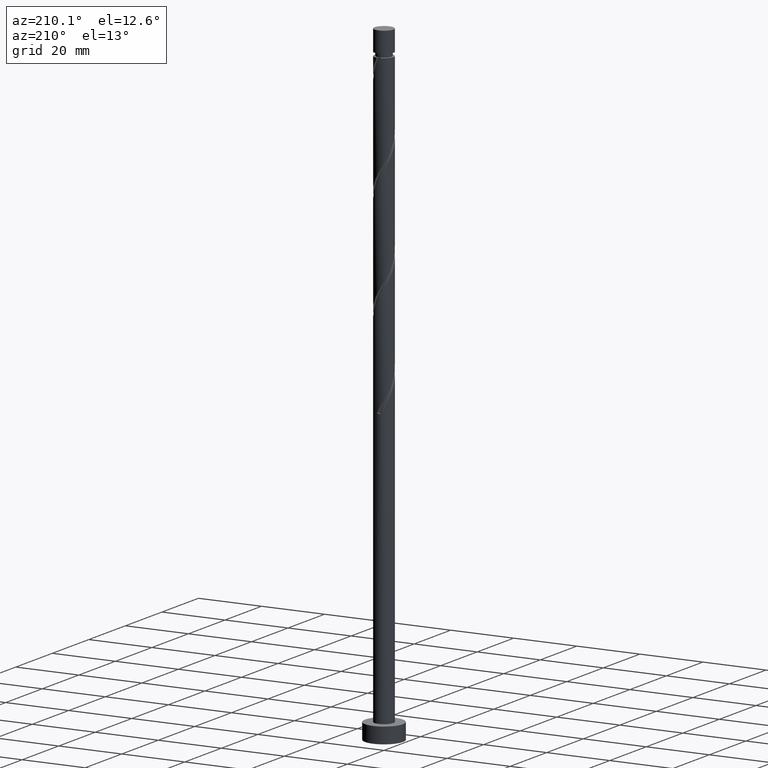
[diagram: clean part render]
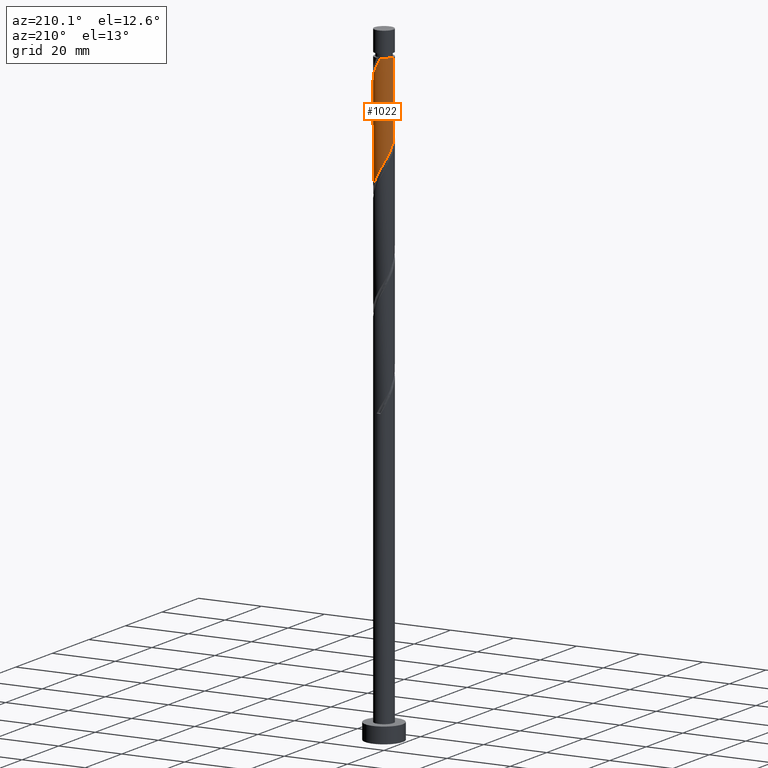
[diagram: same view with one face highlighted and labeled with its STEP entity id]
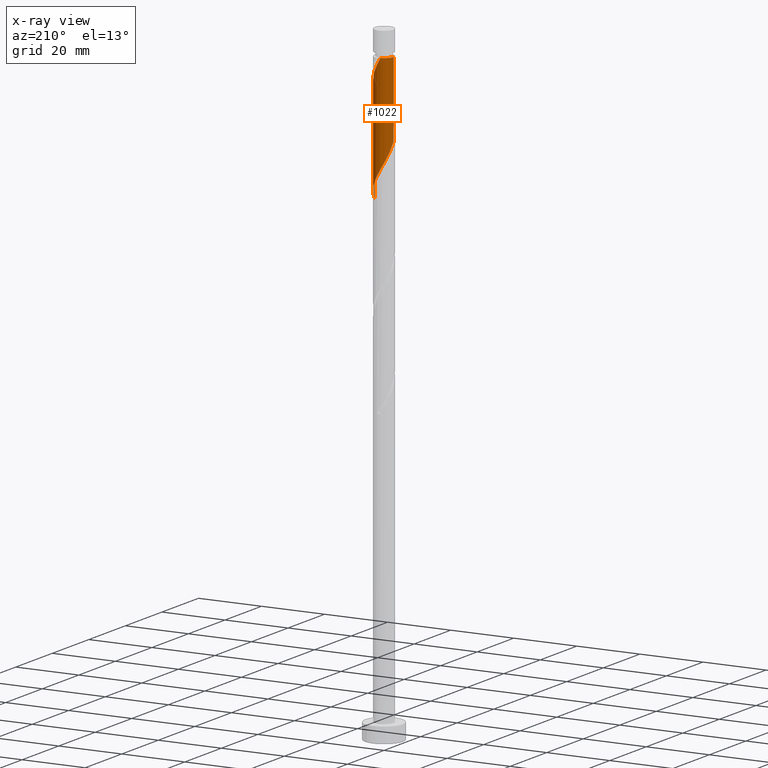
[diagram: x-ray of the same camera — body ghosted, the highlighted face saturated]
A machine part, auxiliary view. The second image highlights one B-rep face of the part: STEP entity #1022.
The next image is the same camera in x-ray: the body ghosted, the highlighted face saturated — about 0% of this face is hidden behind the body in this view.
In plain terms, the highlighted cylindrical surface (edge-blend (fillet) strip) has radius 3 mm, axis along (-0, -0, -1).
Its self-contained STEP definition (entity closure, byte-faithful):
#14 = VERTEX_POINT ( 'NONE', #281 ) ;
#36 = CARTESIAN_POINT ( 'NONE',  ( 1.337578430002085428, 2.685308910273295879, 157.5395933745510320 ) ) ;
#61 = CARTESIAN_POINT ( 'NONE',  ( 2.719147488601524554, 1.327489493864647763, 154.0673711523288318 ) ) ;
#64 = CARTESIAN_POINT ( 'NONE',  ( 1.656756518304344006, 2.501031355072560469, 188.0951489301065180 ) ) ;
#123 = CYLINDRICAL_SURFACE ( 'NONE', #667, 3.000000000000000444 ) ;
#195 = CARTESIAN_POINT ( 'NONE',  ( -0.5969924622639894984, 2.940000000000000835, 192.2618155967732889 ) ) ;
#203 = CARTESIAN_POINT ( 'NONE',  ( 0.9529893618115810039, 2.844610918258237753, 189.4840378189954606 ) ) ;
#225 = EDGE_CURVE ( 'NONE', #566, #535, #498, .T. ) ;
#249 = EDGE_CURVE ( 'NONE', #1574, #14, #618, .T. ) ;
#281 = CARTESIAN_POINT ( 'NONE',  ( -0.5969924622639894984, 2.940000000000000835, 192.2618155967732889 ) ) ;
#282 = CARTESIAN_POINT ( 'NONE',  ( -3.000000000000000444, 1.315933031038566851E-15, 168.3253822519832852 ) ) ;
#337 = DIRECTION ( 'NONE',  ( -0.000000000000000000, -0.000000000000000000, -1.000000000000000000 ) ) ;
#354 = DIRECTION ( 'NONE',  ( -1.000000000000000000, 0.000000000000000000, 0.000000000000000000 ) ) ;
#383 = EDGE_CURVE ( 'NONE', #1037, #535, #1041, .T. ) ;
#417 = CARTESIAN_POINT ( 'NONE',  ( -1.656756518304340675, 2.501031355072558249, 163.0951489301065180 ) ) ;
#431 = CARTESIAN_POINT ( 'NONE',  ( -2.685308910273296767, 1.337578430002083874, 165.8729267078843179 ) ) ;
#435 = AXIS2_PLACEMENT_3D ( 'NONE', #1035, #1577, #354 ) ;
#447 = CARTESIAN_POINT ( 'NONE',  ( 3.000000000000000444, 0.09222585497300986312, 151.8218792733447913 ) ) ;
#478 = CARTESIAN_POINT ( 'NONE',  ( 3.000000000000003553, 0.3015113445777652945, 183.3983419774190793 ) ) ;
#491 = LINE ( 'NONE', #1418, #1740 ) ;
#498 = LINE ( 'NONE', #1559, #587 ) ;
#518 = CARTESIAN_POINT ( 'NONE',  ( -2.939999999999999503, 0.5969924622639717349, 167.2618155967732321 ) ) ;
#535 = VERTEX_POINT ( 'NONE', #1615 ) ;
#566 = VERTEX_POINT ( 'NONE', #827 ) ;
#569 = EDGE_LOOP ( 'NONE', ( #602, #1724, #899, #1068, #1583 ) ) ;
#579 = CARTESIAN_POINT ( 'NONE',  ( 1.691106054833252825, 2.509213369244494896, 156.8451489301065749 ) ) ;
#587 = VECTOR ( 'NONE', #337, 1000.000000000000000 ) ;
#593 = CARTESIAN_POINT ( 'NONE',  ( 2.501031355072558249, 1.656756518304340453, 154.7618155967732037 ) ) ;
#602 = ORIENTED_EDGE ( 'NONE', *, *, #1612, .F. ) ;
#606 = CARTESIAN_POINT ( 'NONE',  ( -0.2099341193570246344, 3.018595548697905251, 191.5673711523288034 ) ) ;
#611 = DIRECTION ( 'NONE',  ( -0.000000000000000000, -0.000000000000000000, -1.000000000000000000 ) ) ;
#618 = CIRCLE ( 'NONE', #435, 2.999999999999989342 ) ;
#623 = EDGE_CURVE ( 'NONE', #1574, #1037, #491, .T. ) ;
#648 = FACE_OUTER_BOUND ( 'NONE', #569, .T. ) ;
#667 = AXIS2_PLACEMENT_3D ( 'NONE', #1320, #1332, #1071 ) ;
#706 = CARTESIAN_POINT ( 'NONE',  ( -0.5784892297585056964, 2.970074347914949175, 161.0118155967732037 ) ) ;
#724 = CARTESIAN_POINT ( 'NONE',  ( 0.9840508051709182524, 2.861404451302097751, 158.2340378189954322 ) ) ;
#738 = CARTESIAN_POINT ( 'NONE',  ( 2.844610918258235976, 0.9529893618115753418, 153.3729267078842611 ) ) ;
#760 = CARTESIAN_POINT ( 'NONE',  ( 0.1842775552007419881, 2.994334948306428323, 190.8729267078843463 ) ) ;
#804 = CARTESIAN_POINT ( 'NONE',  ( -3.000000000000000444, 1.315933031038566851E-15, 168.3253822519832852 ) ) ;
#827 = CARTESIAN_POINT ( 'NONE',  ( 3.000000000000003553, 2.243067666542998133E-15, 182.8649156082298077 ) ) ;
#835 = CARTESIAN_POINT ( 'NONE',  ( -1.327489493864649317, 2.719147488601523222, 162.4007044856620894 ) ) ;
#854 = CARTESIAN_POINT ( 'NONE',  ( 2.940000000000004832, 0.5969924622639714018, 183.9284822634398893 ) ) ;
#860 = CARTESIAN_POINT ( 'NONE',  ( 2.994334948306424327, 0.1842775552007373807, 151.9840378189954038 ) ) ;
#863 = CARTESIAN_POINT ( 'NONE',  ( 2.685308910273301652, 1.337578430002083429, 185.3173711523287466 ) ) ;
#885 = CARTESIAN_POINT ( 'NONE',  ( 1.986023542744038473, 2.282915221543595052, 187.4007044856621178 ) ) ;
#899 = ORIENTED_EDGE ( 'NONE', *, *, #383, .F. ) ;
#924 = CARTESIAN_POINT ( 'NONE',  ( -2.509213369244494896, 1.691106054833251493, 165.1784822634399177 ) ) ;
#956 = CARTESIAN_POINT ( 'NONE',  ( -2.861404451302099528, 0.9840508051709160320, 166.5673711523288034 ) ) ;
#964 = CARTESIAN_POINT ( 'NONE',  ( -2.999999999999999556, 0.3015113445777665158, 167.7919558827940136 ) ) ;
#996 = CARTESIAN_POINT ( 'NONE',  ( 3.000000000000003997, 2.243067666542998133E-15, 182.8649156082298077 ) ) ;
#1019 =( BOUNDED_CURVE ( )  B_SPLINE_CURVE ( 2, ( #996, #478, #854, #1151, #863, #1264, #1273, #885, #64, #1538, #203, #1399, #760, #606, #195 ),
 .UNSPECIFIED., .F., .T. ) 
 B_SPLINE_CURVE_WITH_KNOTS ( ( 3, 2, 2, 2, 2, 2, 2, 3 ),
 ( 0.6795317669814463502, 0.6875000000000000000, 0.6979166666666667407, 0.7083333333333332593, 0.7187500000000000000, 0.7291666666666667407, 0.7395833333333332593, 0.7500000000000000000 ),
 .UNSPECIFIED. ) 
 CURVE ( )  GEOMETRIC_REPRESENTATION_ITEM ( )  RATIONAL_B_SPLINE_CURVE ( ( 0.9062941362546504953, 0.9031415850403546886, 0.9090909090909301549, 0.9013135103398484116, 0.9090909090909301549, 0.9013135103398484116, 0.9090909090909301549, 0.9013135103398484116, 0.9090909090909301549, 0.9013135103398484116, 0.9090909090909301549, 0.9013135103398484116, 0.9090909090909301549, 0.9013135103398484116, 0.9090909090909301549 ) ) 
 REPRESENTATION_ITEM ( '' )  );
#1022 = ADVANCED_FACE ( 'NONE', ( #648 ), #123, .T. ) ;
#1035 = CARTESIAN_POINT ( 'NONE',  ( 0.000000000000000000, 0.000000000000000000, 192.2618155967732037 ) ) ;
#1037 = VERTEX_POINT ( 'NONE', #804 ) ;
#1041 =( BOUNDED_CURVE ( )  B_SPLINE_CURVE ( 2, ( #282, #964, #518, #956, #431, #924, #1388, #1230, #417, #835, #1374, #706, #1240, #1383, #1278, #724, #36, #579, #1120, #1681, #593, #61, #738, #1131, #860, #447, #1535 ),
 .UNSPECIFIED., .F., .T. ) 
 B_SPLINE_CURVE_WITH_KNOTS ( ( 3, 2, 2, 2, 2, 2, 2, 2, 2, 2, 2, 2, 2, 3 ),
 ( 0.4295317669814463502, 0.4375000000000000000, 0.4479166666666666852, 0.4583333333333333148, 0.4687500000000000000, 0.4791666666666666852, 0.4895833333333333148, 0.5000000000000000000, 0.5104166666666666297, 0.5208333333333333703, 0.5312500000000000000, 0.5416666666666666297, 0.5520833333333333703, 0.5545317669814465722 ),
 .UNSPECIFIED. ) 
 CURVE ( )  GEOMETRIC_REPRESENTATION_ITEM ( )  RATIONAL_B_SPLINE_CURVE ( ( 0.9062941362546450552, 0.9031415850403494705, 0.9090909090909247148, 0.9013135103398430825, 0.9090909090909247148, 0.9013135103398430825, 0.9090909090909247148, 0.9013135103398430825, 0.9090909090909247148, 0.9013135103398430825, 0.9090909090909247148, 0.9013135103398430825, 0.9090909090909247148, 0.9013135103398430825, 0.9090909090909247148, 0.9013135103398430825, 0.9090909090909247148, 0.9013135103398430825, 0.9090909090909247148, 0.9013135103398430825, 0.9090909090909247148, 0.9013135103398430825, 0.9090909090909247148, 0.9013135103398430825, 0.9090909090909247148, 0.9072628343904182158, 0.9062941362546448332 ) ) 
 REPRESENTATION_ITEM ( '' )  );
#1068 = ORIENTED_EDGE ( 'NONE', *, *, #623, .F. ) ;
#1071 = DIRECTION ( 'NONE',  ( -1.000000000000000000, 0.000000000000000000, 0.000000000000000000 ) ) ;
#1120 = CARTESIAN_POINT ( 'NONE',  ( 1.987010638188423162, 2.247618455994262909, 156.1507044856620894 ) ) ;
#1131 = CARTESIAN_POINT ( 'NONE',  ( 2.970074347914949175, 0.5784892297585035870, 152.6784822634398893 ) ) ;
#1151 = CARTESIAN_POINT ( 'NONE',  ( 2.861404451302104412, 0.9840508051709156989, 184.6229267078843463 ) ) ;
#1230 = CARTESIAN_POINT ( 'NONE',  ( -1.986023542744033588, 2.282915221543594164, 163.7895933745510035 ) ) ;
#1240 = CARTESIAN_POINT ( 'NONE',  ( -0.1842775552007387407, 2.994334948306424327, 160.3173711523287466 ) ) ;
#1264 = CARTESIAN_POINT ( 'NONE',  ( 2.509213369244499781, 1.691106054833251715, 186.0118155967732321 ) ) ;
#1273 = CARTESIAN_POINT ( 'NONE',  ( 2.247618455994268682, 1.987010638188423162, 186.7062600412176323 ) ) ;
#1278 = CARTESIAN_POINT ( 'NONE',  ( 0.5969924622639722900, 2.939999999999999503, 158.9284822634398608 ) ) ;
#1320 = CARTESIAN_POINT ( 'NONE',  ( 0.000000000000000000, 0.000000000000000000, 200.0000000000000000 ) ) ;
#1332 = DIRECTION ( 'NONE',  ( -0.000000000000000000, -0.000000000000000000, -1.000000000000000000 ) ) ;
#1374 = CARTESIAN_POINT ( 'NONE',  ( -0.9529893618115774512, 2.844610918258235088, 161.7062600412176607 ) ) ;
#1383 = CARTESIAN_POINT ( 'NONE',  ( 0.2099341193570278818, 3.018595548697901254, 159.6229267078843463 ) ) ;
#1388 = CARTESIAN_POINT ( 'NONE',  ( -2.247618455994264242, 1.987010638188422718, 164.4840378189953469 ) ) ;
#1399 = CARTESIAN_POINT ( 'NONE',  ( 0.5784892297585086940, 2.970074347914952284, 190.1784822634398324 ) ) ;
#1418 = CARTESIAN_POINT ( 'NONE',  ( -3.000000000000000444, 0.000000000000000000, 200.0000000000000000 ) ) ;
#1429 = CARTESIAN_POINT ( 'NONE',  ( -2.999999999999989342, 0.000000000000000000, 192.2618155967732037 ) ) ;
#1535 = CARTESIAN_POINT ( 'NONE',  ( 3.000000000000000000, -3.080479595385736011E-15, 151.6587155853165996 ) ) ;
#1538 = CARTESIAN_POINT ( 'NONE',  ( 1.327489493864653536, 2.719147488601526330, 188.7895933745510035 ) ) ;
#1559 = CARTESIAN_POINT ( 'NONE',  ( 3.000000000000000444, 3.673940397442060361E-16, 200.0000000000000000 ) ) ;
#1574 = VERTEX_POINT ( 'NONE', #1429 ) ;
#1577 = DIRECTION ( 'NONE',  ( -0.000000000000000000, -0.000000000000000000, -1.000000000000000000 ) ) ;
#1583 = ORIENTED_EDGE ( 'NONE', *, *, #249, .T. ) ;
#1612 = EDGE_CURVE ( 'NONE', #566, #14, #1019, .T. ) ;
#1615 = CARTESIAN_POINT ( 'NONE',  ( 3.000000000000000444, -3.080479595385736011E-15, 151.6587155853165996 ) ) ;
#1681 = CARTESIAN_POINT ( 'NONE',  ( 2.282915221543594164, 1.986023542744032477, 155.4562600412176891 ) ) ;
#1724 = ORIENTED_EDGE ( 'NONE', *, *, #225, .T. ) ;
#1740 = VECTOR ( 'NONE', #611, 1000.000000000000000 ) ;